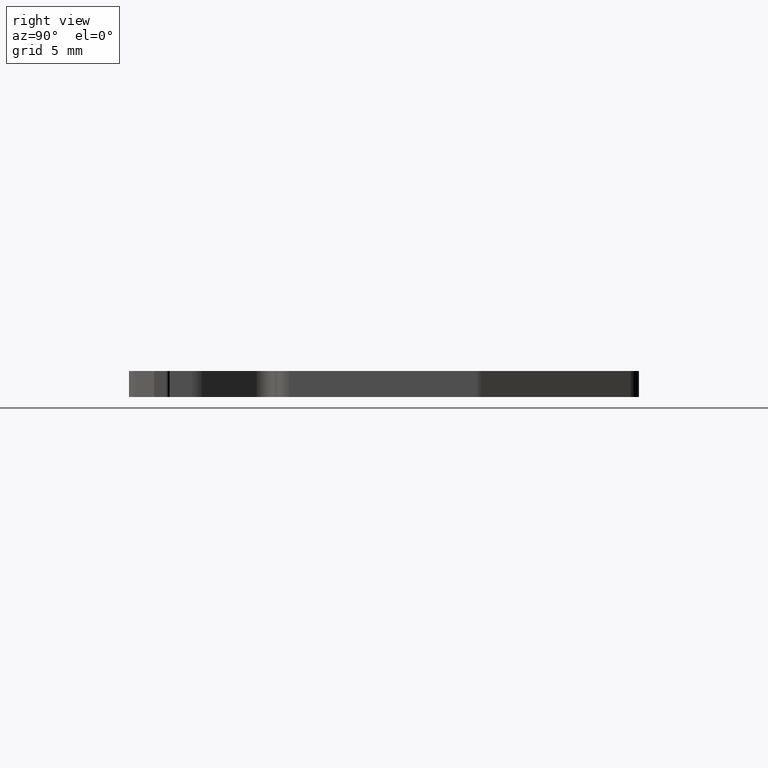
[diagram: clean part render]
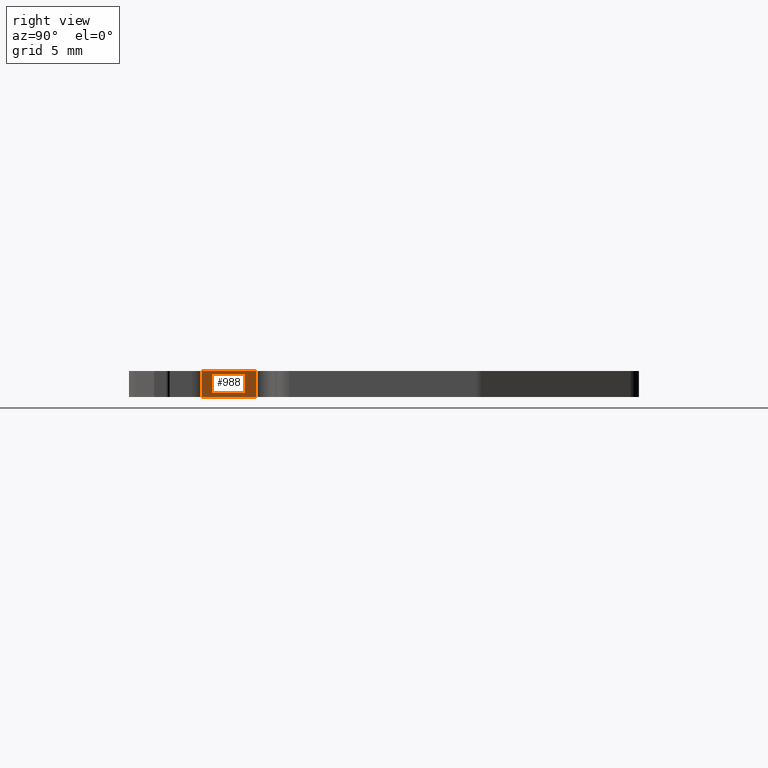
[diagram: same view with one face highlighted and labeled with its STEP entity id]
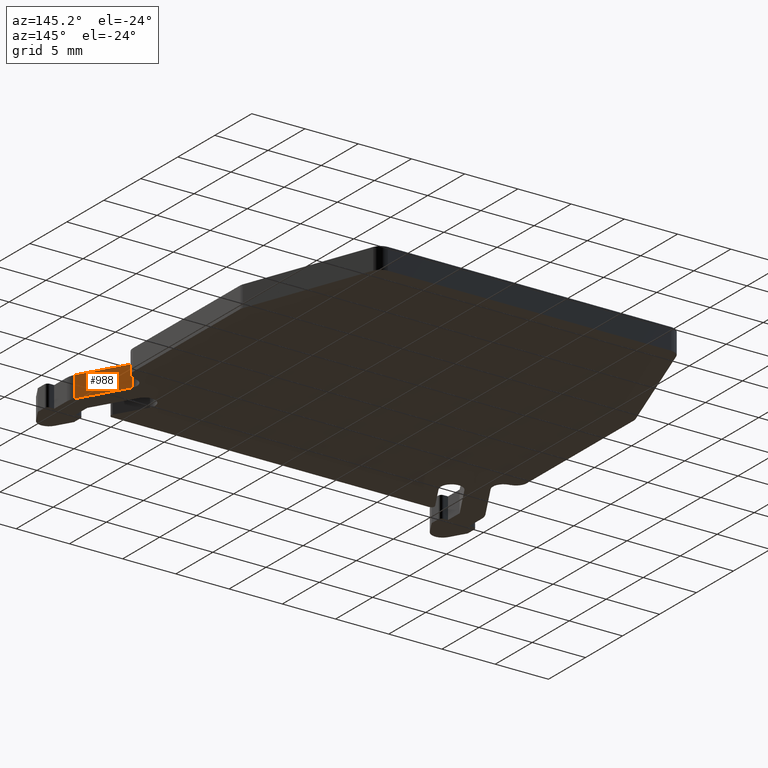
[diagram: same view with one face highlighted and labeled with its STEP entity id]
A machine part, right view. The second image highlights one B-rep face of the part: STEP entity #988.
A second angle (auxiliary view) of the same face is appended — the face is thin or edge-on in the first view.
In plain terms, the highlighted planar face has unit normal (0.866, 0.5, 0).
Its self-contained STEP definition (entity closure, byte-faithful):
#18=PLANE('',#1050);
#54=FACE_OUTER_BOUND('',#106,.T.);
#106=EDGE_LOOP('',(#689,#690,#691,#692));
#164=LINE('',#1467,#274);
#165=LINE('',#1471,#275);
#166=LINE('',#1473,#276);
#167=LINE('',#1474,#277);
#274=VECTOR('',#1170,2.);
#275=VECTOR('',#1175,4.88897274573418);
#276=VECTOR('',#1176,2.);
#277=VECTOR('',#1177,4.88897274573418);
#425=VERTEX_POINT('',#1464);
#426=VERTEX_POINT('',#1466);
#427=VERTEX_POINT('',#1470);
#428=VERTEX_POINT('',#1472);
#531=EDGE_CURVE('',#426,#425,#164,.T.);
#533=EDGE_CURVE('',#425,#427,#165,.T.);
#534=EDGE_CURVE('',#428,#427,#166,.T.);
#535=EDGE_CURVE('',#428,#426,#167,.T.);
#689=ORIENTED_EDGE('',*,*,#533,.T.);
#690=ORIENTED_EDGE('',*,*,#534,.F.);
#691=ORIENTED_EDGE('',*,*,#535,.T.);
#692=ORIENTED_EDGE('',*,*,#531,.T.);
#988=ADVANCED_FACE('',(#54),#18,.T.);
#1050=AXIS2_PLACEMENT_3D('',#1469,#1173,#1174);
#1170=DIRECTION('',(0.,0.,1.));
#1173=DIRECTION('center_axis',(0.866025403784439,0.499999999999999,0.));
#1174=DIRECTION('ref_axis',(0.,0.,-1.));
#1175=DIRECTION('',(0.499999999999999,-0.866025403784439,0.));
#1176=DIRECTION('',(0.,0.,1.));
#1177=DIRECTION('',(-0.499999999999999,0.866025403784439,0.));
#1464=CARTESIAN_POINT('',(16.8495517328096,5.5,1.));
#1466=CARTESIAN_POINT('',(16.8495517328096,5.5,-1.));
#1467=CARTESIAN_POINT('',(16.8495517328096,5.5,0.));
#1469=CARTESIAN_POINT('Origin',(16.8495517328096,5.5,0.));
#1470=CARTESIAN_POINT('',(19.2940381056767,1.26602540378444,1.));
#1471=CARTESIAN_POINT('',(19.2940381056767,1.26602540378444,1.));
#1472=CARTESIAN_POINT('',(19.2940381056767,1.26602540378444,-1.));
#1473=CARTESIAN_POINT('',(19.2940381056767,1.26602540378444,0.));
#1474=CARTESIAN_POINT('',(19.2940381056767,1.26602540378444,-1.));